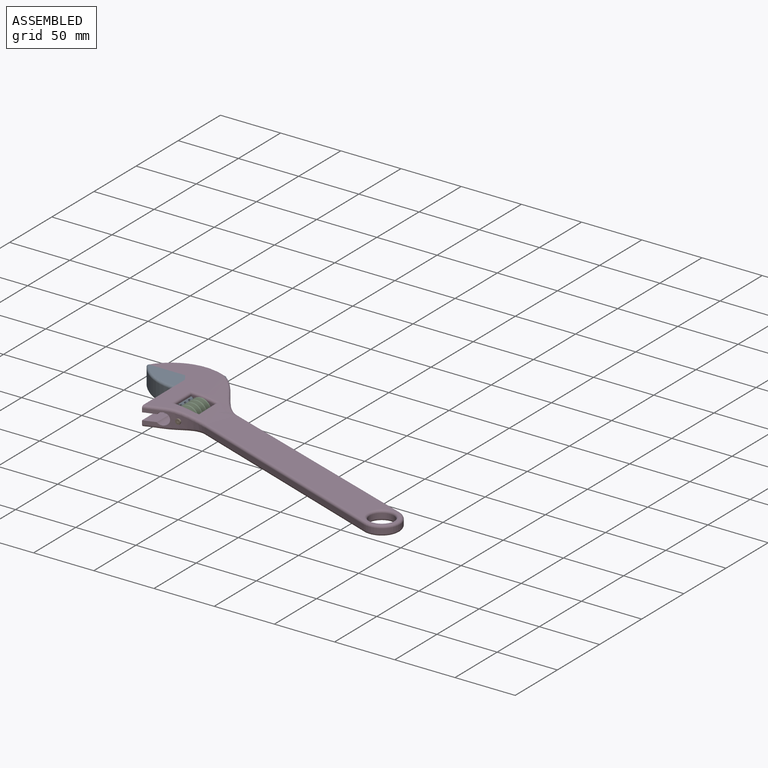
[diagram: assembled view]
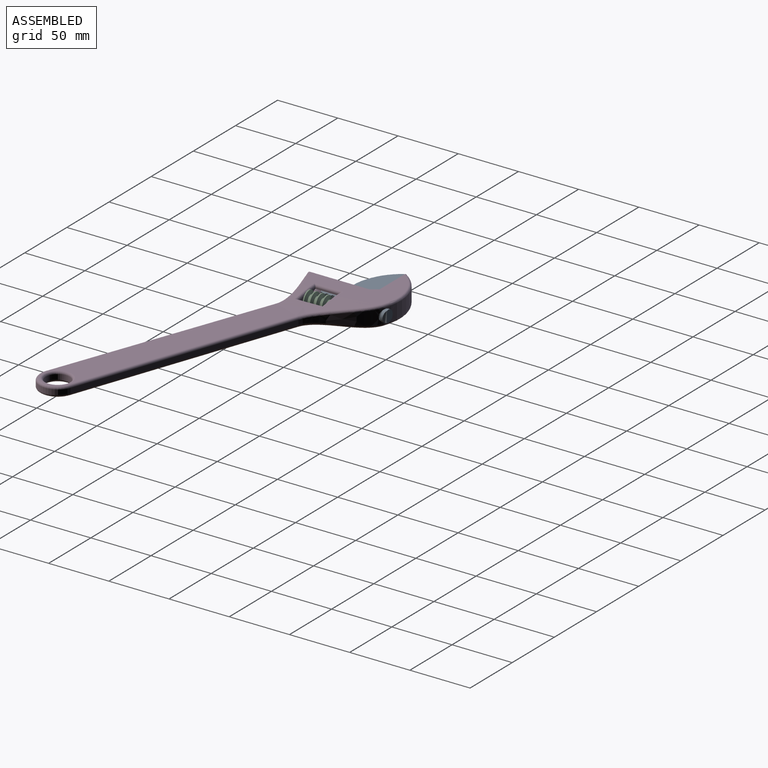
[diagram: assembled view, second angle]
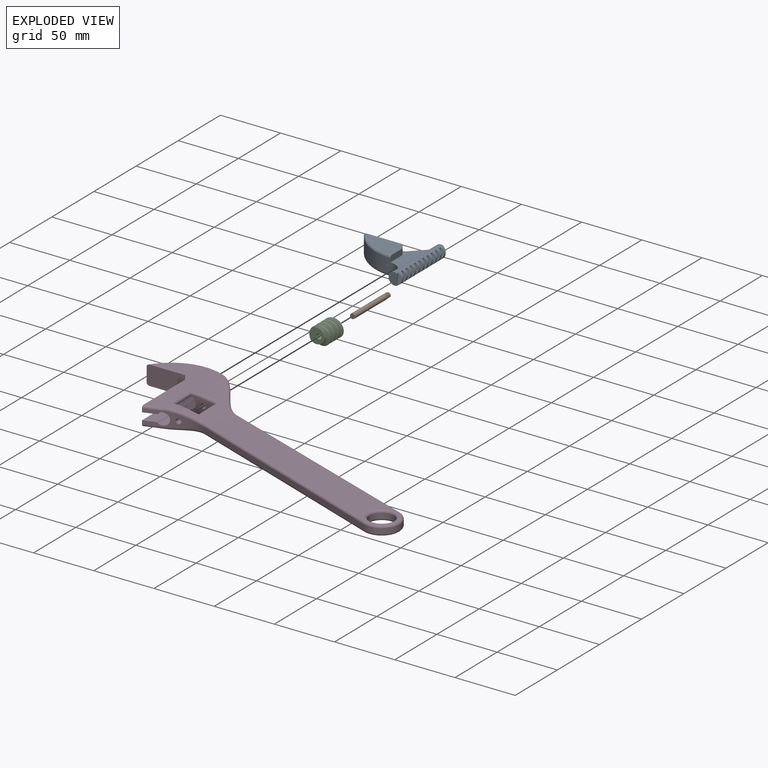
[diagram: exploded view]
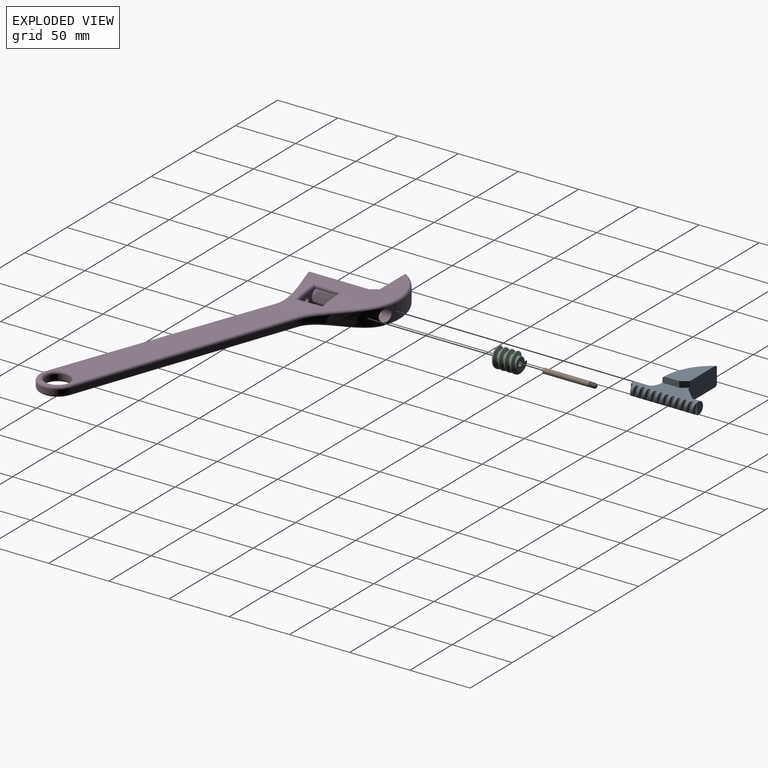
[diagram: exploded view, second angle]
ASSEMBLY  parts=4 mates=3
PART A: 51 faces, bbox 58x55x16 mm
  f0: cylinder r=5mm len=55mm, axis (0,-1,0), area 1153.7mm2, adj f1,f2,f3,f4,f5,f14,f15,f16
  f1: plane 10x7mm, normal (0,1,0), area 58.7mm2, adj f0,f17
  f2: plane 10x7mm, normal (0,-1,0), area 58.7mm2, adj f0,f15
  f3: cylinder r=12mm len=10mm, axis (0,0,-1), area 64.1mm2, adj f0,f4,f5,f9
  f4: plane 37.37x14mm, normal (0,0,1), area 299.9mm2, adj f0,f3,f8,f10,f11,f14
  f5: plane 37.37x14mm, normal (0,0,-1), area 299.9mm2, adj f0,f3,f6,f7,f8,f14
  f6: plane 14x5mm, normal (1,0,0), area 69.1mm2, adj f5,f7,f9,f13,f49
  f7: plane 6x5mm, normal (0.83,0.55,0), area 36.1mm2, adj f5,f6,f8,f13
  f8: plane 34x16mm, normal (0,1,0), area 522mm2, adj f4,f5,f7,f9,f11,f12,f13,f14
  f9: cylinder r=42.4mm len=36mm, axis (0,0,-1), area 516mm2, adj f3,f6,f8,f10,f49,f50
  f10: plane 14x5mm, normal (1,0,0), area 69.1mm2, adj f4,f9,f11,f12,f50
  f11: plane 6x5mm, normal (0.83,0.55,0), area 36.1mm2, adj f4,f8,f10,f12
  f12: plane 33.62x18mm, normal (0,0,1), area 413.7mm2, adj f8,f10,f11,f50
  f13: plane 33.62x18mm, normal (0,0,-1), area 413.7mm2, adj f6,f7,f8,f49
  f14: plane 12x12mm, normal (-0.71,0.71,0), area 96mm2, adj f0,f4,f5,f8
  f15: plane 9.17x1.64mm, normal (1,0,0), area 9.2mm2, adj f0,f2,f16
  f16: plane 9.17x3mm, normal (0.17,-0.98,0.14), area 20.3mm2, adj f0,f15
  f17: plane 9.17x1.64mm, normal (1,0,0), area 9.2mm2, adj f0,f1,f18
  f18: plane 9.17x3mm, normal (0.17,0.98,-0.14), area 20.3mm2, adj f0,f17
  f19: plane 9.17x3.29mm, normal (1,0,0), area 18.3mm2, adj f0,f20,f21
  f20: plane 9.17x3mm, normal (0.17,0.98,-0.14), area 20.3mm2, adj f0,f19
  f21: plane 9.17x3mm, normal (0.17,-0.98,0.14), area 20.3mm2, adj f0,f19
  f22: plane 9.17x3.29mm, normal (1,0,0), area 18.3mm2, adj f0,f23,f24
  f23: plane 9.17x3mm, normal (0.17,0.98,-0.14), area 20.3mm2, adj f0,f22
  f24: plane 9.17x3mm, normal (0.17,-0.98,0.14), area 20.3mm2, adj f0,f22
  f25: plane 9.17x3.29mm, normal (1,0,0), area 18.3mm2, adj f0,f26,f27
  f26: plane 9.17x3mm, normal (0.17,0.98,-0.14), area 20.3mm2, adj f0,f25
  f27: plane 9.17x3mm, normal (0.17,-0.98,0.14), area 20.3mm2, adj f0,f25
  f28: plane 9.17x3.29mm, normal (1,0,0), area 18.3mm2, adj f0,f29,f30
  f29: plane 9.17x3mm, normal (0.17,0.98,-0.14), area 20.3mm2, adj f0,f28
  f30: plane 9.17x3mm, normal (0.17,-0.98,0.14), area 20.3mm2, adj f0,f28
  f31: plane 9.17x3.29mm, normal (1,0,0), area 18.3mm2, adj f0,f32,f33
  f32: plane 9.17x3mm, normal (0.17,0.98,-0.14), area 20.3mm2, adj f0,f31
  f33: plane 9.17x3mm, normal (0.17,-0.98,0.14), area 20.3mm2, adj f0,f31
  f34: plane 9.17x3.29mm, normal (1,0,0), area 18.3mm2, adj f0,f35,f36
  f35: plane 9.17x3mm, normal (0.17,0.98,-0.14), area 20.3mm2, adj f0,f34
  f36: plane 9.17x3mm, normal (0.17,-0.98,0.14), area 20.3mm2, adj f0,f34
  f37: plane 9.17x3.29mm, normal (1,0,0), area 18.3mm2, adj f0,f38,f39
  f38: plane 9.17x3mm, normal (0.17,0.98,-0.14), area 20.3mm2, adj f0,f37
  f39: plane 9.17x3mm, normal (0.17,-0.98,0.14), area 20.3mm2, adj f0,f37
  f40: plane 9.17x3.29mm, normal (1,0,0), area 18.3mm2, adj f0,f41,f42
  f41: plane 9.17x3mm, normal (0.17,0.98,-0.14), area 20.3mm2, adj f0,f40
  f42: plane 9.17x3mm, normal (0.17,-0.98,0.14), area 20.3mm2, adj f0,f40
  f43: plane 9.17x3.29mm, normal (1,0,0), area 18.3mm2, adj f0,f44,f45
  f44: plane 9.17x3mm, normal (0.17,0.98,-0.14), area 20.3mm2, adj f0,f43
  f45: plane 9.17x3mm, normal (0.17,-0.98,0.14), area 20.3mm2, adj f0,f43
  f46: plane 9.17x3mm, normal (0.17,-0.98,0.14), area 20.3mm2, adj f0,f48
  f47: plane 9.17x3mm, normal (0.17,0.98,-0.14), area 20.3mm2, adj f0,f48
  f48: plane 9.17x3.29mm, normal (1,0,0), area 18.3mm2, adj f0,f46,f47
  f49: torus R=40.4mm, axis (0,0,1), area 131.3mm2, adj f6,f8,f9,f13
  f50: torus R=40.4mm, axis (0,0,1), area 131.3mm2, adj f8,f9,f10,f12
PART B: 14 faces, bbox 4.4x43.7x4.9 mm
  f0: plane 4.2x4.2mm, normal (0,-1,0), area 12.9mm2, adj f7,f9,f10,f11,f12
  f1: cylinder r=1.25mm len=5mm, axis (0,1,0), area 15mm2, adj f2,f3,f5,f6,f8
  f2: bspline ~5.37x4.6mm, area 31mm2, adj f1,f4,f5,f8
  f3: bspline ~5.79x4.61mm, area 32.8mm2, adj f1,f4,f6,f8
  f4: bspline ~5.46x4.61mm, area 12.1mm2, adj f2,f3,f5,f6,f8
  f5: plane 0.75x0.42mm, normal (-0.08,-0.16,0.98), area 0.2mm2, adj f1,f2,f4,f6
  f6: plane 3.48x3.04mm, normal (0,1,0), area 6.3mm2, adj f1,f3,f4,f5
  f7: cylinder r=2.1mm len=38mm, axis (0,1,0), area 501.4mm2, adj f0,f8
  f8: plane 4.45x4.45mm, normal (0,1,0), area 5.9mm2, adj f1,f2,f3,f4,f7
  f9: plane 0.5x0.5mm, normal (-1,0,0), area 0.3mm2, adj f0,f10,f12,f13
  f10: plane 2x0.5mm, normal (0,0,-1), area 1mm2, adj f0,f9,f11,f13
  f11: plane 0.5x0.5mm, normal (1,0,0), area 0.3mm2, adj f0,f10,f12,f13
  f12: plane 2x0.5mm, normal (0,0,1), area 1mm2, adj f0,f9,f11,f13
  f13: plane 2x0.5mm, normal (0,-1,0), area 1mm2, adj f9,f10,f11,f12
PART C: 8 faces, bbox 17.8x24.9x19.4 mm
  f0: cylinder r=5mm len=20mm, axis (0,1,0), area 239.6mm2, adj f1,f2,f4,f5,f6
  f1: bspline ~21.48x18.4mm, area 495.9mm2, adj f0,f3,f4,f5
  f2: bspline ~23.15x18.43mm, area 524mm2, adj f0,f3,f5,f6
  f3: bspline ~21.82x18.43mm, area 194mm2, adj f1,f2,f4,f5,f6
  f4: plane 3.02x1.69mm, normal (-0.08,-0.16,0.98), area 3.4mm2, adj f0,f1,f3,f6
  f5: plane 14x13.55mm, normal (0,-1,0), area 113mm2, adj f0,f1,f2,f3,f7
  f6: plane 13.9x12.18mm, normal (0,1,0), area 87mm2, adj f0,f2,f3,f4,f7
  f7: cylinder r=2.1mm len=20mm, axis (0,1,0), area 263.9mm2, adj f5,f6
PART D: 70 faces, bbox 288.3x144.4x18 mm
  f0: plane 20x1.1mm, normal (1,0,0), area 22mm2, adj f3,f23,f24,f47
  f1: plane 51.28x5.28mm, normal (-1,0,0), area 254.1mm2, adj f10,f12,f13,f35,f67
  f2: plane 15.19x5.19mm, normal (0.32,-0.95,0), area 39.5mm2, adj f3,f8,f11,f36,f50
  f3: cylinder r=5mm len=70.92mm, axis (0,-1,0), area 1499.5mm2, adj f0,f2,f4,f6,f7,f8,f12,f23
  f4: cylinder r=42.4mm len=51mm, axis (0,0,-1), area 648.5mm2, adj f3,f6,f9,f54,f59
  f5: plane 6x5mm, normal (-0.83,-0.55,0), area 36.1mm2, adj f9,f11,f14,f36
  f6: bspline ~42.38x41.78mm, area 466.1mm2, adj f3,f4,f18,f56,f57,f58,f60,f61
  f7: plane 20x1.1mm, normal (1,0,0), area 22mm2, adj f3,f23,f24,f43
  f8: bspline ~32.8x16mm, area 224.7mm2, adj f2,f3,f12,f15,f26,f50,f51,f66
  f9: plane 34.53x16.53mm, normal (0,-1,0), area 522mm2, adj f4,f5,f10,f13,f14,f35,f36,f37
  f10: plane 6x5mm, normal (-0.83,-0.55,0), area 36.1mm2, adj f1,f9,f13,f35
  f11: plane 51.28x5.28mm, normal (-1,0,0), area 254.1mm2, adj f2,f5,f14,f36,f50
  f12: plane 15.19x5.19mm, normal (0.32,-0.95,0), area 39.5mm2, adj f1,f3,f8,f35,f67
  f13: plane 72.9x48.63mm, normal (0,0,1), area 1431.4mm2, adj f1,f9,f10,f21,f41,f42,f43,f59
  f14: plane 72.9x48.63mm, normal (0,0,-1), area 1431.4mm2, adj f5,f9,f11,f22,f45,f47,f49,f50
  f15: plane 178.2x65.92mm, normal (-0.35,-0.94,0), area 760mm2, adj f8,f16,f52,f65
  f16: cylinder r=15mm len=29.1mm, axis (0,0,-1), area 188.5mm2, adj f15,f18,f53,f64
  f17: cylinder r=10mm len=20mm, axis (0,0,-1), area 251.3mm2, adj f68,f69
  f18: plane 178.88x64.04mm, normal (0.34,0.94,0), area 760mm2, adj f6,f16,f55,f63
  f19: plane 195.65x89.26mm, normal (0,0,1), area 4563.1mm2, adj f21,f62,f63,f64,f65,f66,f69
  f20: plane 195.65x89.26mm, normal (0,0,-1), area 4563.1mm2, adj f22,f51,f52,f53,f55,f57,f68
  f21: bspline ~69.26x42.38mm, area 1081.5mm2, adj f13,f19,f38,f39,f40,f61,f67
  f22: bspline ~69.26x42.38mm, area 1081.5mm2, adj f14,f20,f44,f46,f48,f50,f58
  f23: plane 20.04x12.01mm, normal (0,-1,0), area 166.3mm2, adj f0,f3,f7,f25,f27,f38,f39,f46
  f24: plane 20.03x12mm, normal (0,1,0), area 157.2mm2, adj f0,f3,f7,f25,f26,f38,f40,f44
  f25: plane 20x7.16mm, normal (-1,0,0), area 136mm2, adj f23,f24,f38,f46
  f26: cylinder r=2.1mm len=9.44mm, axis (0,1,0), area 124.6mm2, adj f8,f24
  f27: cylinder r=2.1mm len=7.5mm, axis (0,1,0), area 99mm2, adj f23,f34
  f28: cylinder r=1.25mm len=5mm, axis (0,1,0), area 15mm2, adj f29,f30,f32,f33,f34
  f29: bspline ~5.37x4.6mm, area 31mm2, adj f28,f31,f32,f34
  f30: bspline ~5.79x4.61mm, area 32.8mm2, adj f28,f31,f33,f34
  f31: bspline ~5.46x4.61mm, area 12.1mm2, adj f29,f30,f32,f33,f34
  f32: plane 0.75x0.42mm, normal (0.08,0.16,-0.98), area 0.2mm2, adj f28,f29,f31,f33
  f33: plane 3.48x3.04mm, normal (0,-1,0), area 6.3mm2, adj f28,f30,f31,f32
  f34: plane 4.45x4.45mm, normal (0,-1,0), area 5.9mm2, adj f27,f28,f29,f30,f31
  f35: plane 69x14mm, normal (0,0,-1), area 637.3mm2, adj f1,f3,f9,f10,f12,f37
  f36: plane 69x14mm, normal (0,0,1), area 637.3mm2, adj f2,f3,f5,f9,f11,f37
  f37: plane 14x14mm, normal (0.71,-0.71,0), area 96mm2, adj f3,f9,f35,f36
  f38: bspline ~31.27x2.9mm, area 73.4mm2, adj f21,f23,f24,f25,f39,f40
  f39: bspline ~27.01x4.92mm, area 66.7mm2, adj f21,f23,f38,f41
  f40: bspline ~26.34x5.36mm, area 67.7mm2, adj f21,f24,f38,f42
  f41: cylinder r=2mm len=2mm, axis (1,0,0), area 3.1mm2, adj f13,f39,f43
  f42: cylinder r=2mm len=2mm, axis (-1,0,0), area 3.1mm2, adj f13,f40,f43
  f43: cylinder r=2mm len=24mm, axis (0,-1,0), area 69.1mm2, adj f7,f13,f41,f42
  f44: bspline ~25.68x5.26mm, area 67.7mm2, adj f22,f24,f45,f46
  f45: cylinder r=2mm len=2mm, axis (-1,0,0), area 3.1mm2, adj f14,f44,f47
  f46: bspline ~39.05x3.07mm, area 73.4mm2, adj f22,f23,f24,f25,f44,f48
  f47: cylinder r=2mm len=24mm, axis (0,1,0), area 69.1mm2, adj f0,f14,f45,f49
  f48: bspline ~31.84x4.82mm, area 66.7mm2, adj f22,f23,f46,f49
  f49: cylinder r=2mm len=2mm, axis (1,0,0), area 3.1mm2, adj f14,f47,f48
  f50: bspline ~54.96x12.23mm, area 154.9mm2, adj f2,f8,f11,f14,f22,f51
  f51: bspline ~9.41x5.09mm, area 0mm2, adj f8,f20,f50,f52
  f52: cylinder r=2mm len=178.89mm, axis (0.94,-0.35,0), area 596.9mm2, adj f15,f20,f51,f53
  f53: torus R=13mm, axis (0,0,1), area 140.9mm2, adj f16,f20,f52,f55
  f54: torus R=40.4mm, axis (0,0,1), area 178.1mm2, adj f4,f9,f14,f56
  f55: cylinder r=2mm len=179.56mm, axis (-0.94,0.34,0), area 596.9mm2, adj f18,f20,f53,f57
  f56: bspline ~16.15x7.72mm, area 2.5mm2, adj f6,f14,f54,f58
  f57: bspline ~16.25x7.48mm, area 0mm2, adj f6,f20,f55,f58
  f58: bspline ~43.9x43.76mm, area 180.5mm2, adj f6,f22,f56,f57
  f59: torus R=40.4mm, axis (0,0,1), area 178.1mm2, adj f4,f9,f13,f60
  f60: bspline ~16.15x7.72mm, area 2.5mm2, adj f6,f13,f59,f61
  f61: bspline ~43.9x43.76mm, area 180.5mm2, adj f6,f21,f60,f62
  f62: bspline ~16.25x7.48mm, area 0mm2, adj f6,f19,f61,f63
  f63: cylinder r=2mm len=179.56mm, axis (0.94,-0.34,0), area 596.9mm2, adj f18,f19,f62,f64
  f64: torus R=13mm, axis (0,0,1), area 140.9mm2, adj f16,f19,f63,f65
  f65: cylinder r=2mm len=178.89mm, axis (-0.94,0.35,0), area 596.9mm2, adj f15,f19,f64,f66
  f66: bspline ~9.41x5.09mm, area 0mm2, adj f8,f19,f65,f67
  f67: bspline ~54.96x12.23mm, area 154.9mm2, adj f1,f8,f12,f13,f21,f66
  f68: torus R=12mm, axis (0,0,1), area 211.7mm2, adj f17,f20
  f69: torus R=12mm, axis (0,0,1), area 211.7mm2, adj f17,f19
PLACE A at identity
PLACE B at identity
PLACE C at identity
PLACE D at identity fixed
MATE slider A.f0 <-> D.f3  axis (0,1,0) through (14,57,0)mm
MATE revolute C.f7 <-> D.f28  axis (0,-1,0) through (25,27,0)mm
MATE cylindrical B.f1 <-> D.f28  axis (0,-1,0) through (25,27,0)mm
